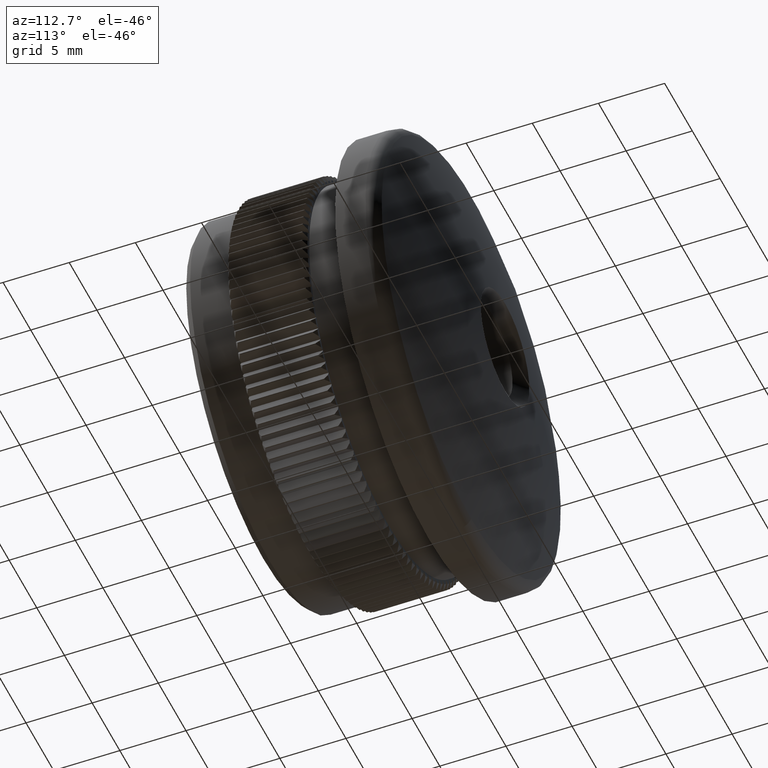
[diagram: clean part render]
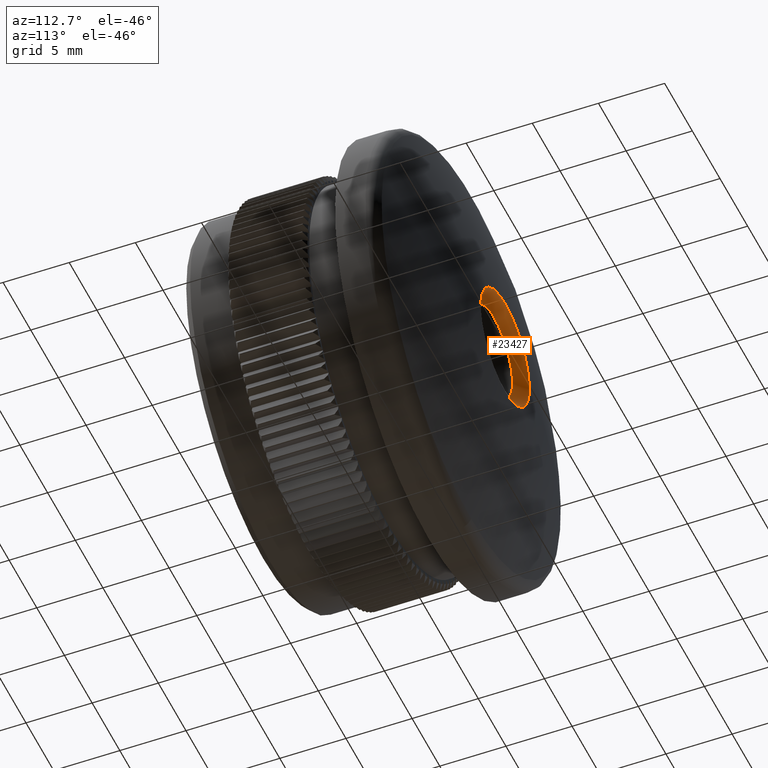
[diagram: same view with one face highlighted and labeled with its STEP entity id]
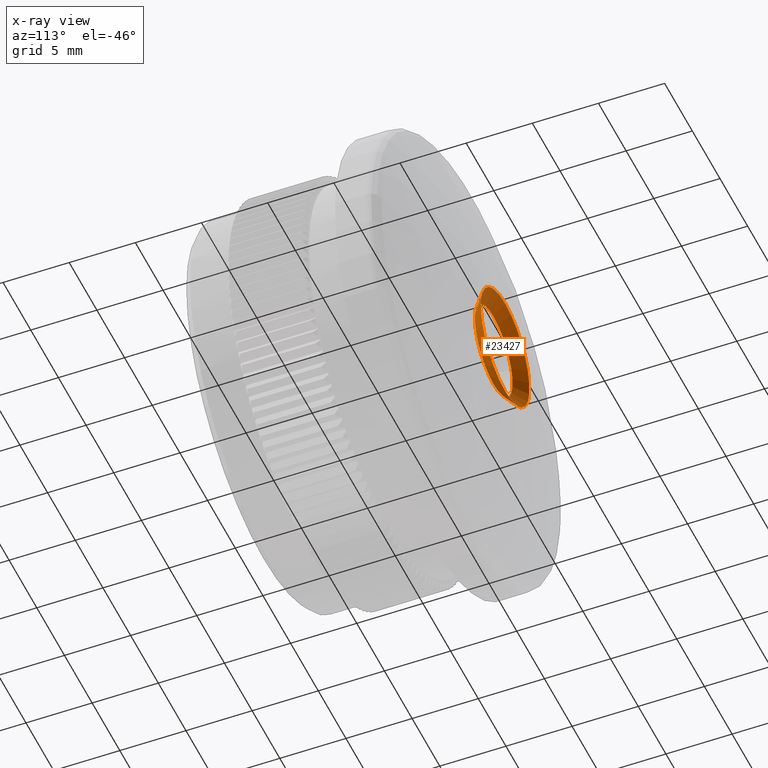
[diagram: x-ray of the same camera — body ghosted, the highlighted face saturated]
A machine part, auxiliary view. The second image highlights one B-rep face of the part: STEP entity #23427.
The next image is the same camera in x-ray: the body ghosted, the highlighted face saturated — about 0% of this face is hidden behind the body in this view.
In plain terms, the highlighted conical surface has half-angle 48.993 deg.
Its self-contained STEP definition (entity closure, byte-faithful):
#1000 = DIRECTION ( 'NONE',  ( 0.0000000000000000000, 1.000000000000000000, 0.0000000000000000000 ) ) ;
#1759 = FACE_OUTER_BOUND ( 'NONE', #16686, .T. ) ;
#2156 = AXIS2_PLACEMENT_3D ( 'NONE', #30752, #3579, #21432 ) ;
#3413 = CIRCLE ( 'NONE', #2156, 4.386859201859131500 ) ;
#3579 = DIRECTION ( 'NONE',  ( -0.0000000000000000000, -1.000000000000000000, -0.0000000000000000000 ) ) ;
#6445 = VERTEX_POINT ( 'NONE', #37274 ) ;
#8678 = EDGE_CURVE ( 'NONE', #6445, #6445, #3413, .T. ) ;
#10381 = CARTESIAN_POINT ( 'NONE',  ( 0.0000000000000000000, 17.44444466708847900, 3.399999999999997700 ) ) ;
#12427 = EDGE_LOOP ( 'NONE', ( #15613 ) ) ;
#15613 = ORIENTED_EDGE ( 'NONE', *, *, #23753, .F. ) ;
#16489 = AXIS2_PLACEMENT_3D ( 'NONE', #35772, #26840, #20804 ) ;
#16686 = EDGE_LOOP ( 'NONE', ( #25556 ) ) ;
#18257 = AXIS2_PLACEMENT_3D ( 'NONE', #22097, #1000, #34176 ) ;
#20804 = DIRECTION ( 'NONE',  ( 0.0000000000000000000, 0.0000000000000000000, 1.000000000000000000 ) ) ;
#21432 = DIRECTION ( 'NONE',  ( 0.0000000000000000000, 0.0000000000000000000, -1.000000000000000000 ) ) ;
#22097 = CARTESIAN_POINT ( 'NONE',  ( 0.0000000000000000000, 17.44444466708847900, 0.0000000000000000000 ) ) ;
#23427 = ADVANCED_FACE ( 'NONE', ( #1759, #35580 ), #25252, .F. ) ;
#23753 = EDGE_CURVE ( 'NONE', #35559, #35559, #31785, .T. ) ;
#25252 = CONICAL_SURFACE ( 'NONE', #16489, 3.399999999999997700, 0.8550975773874491800 ) ;
#25556 = ORIENTED_EDGE ( 'NONE', *, *, #8678, .F. ) ;
#26840 = DIRECTION ( 'NONE',  ( 0.0000000000000000000, 1.000000000000000000, 0.0000000000000000000 ) ) ;
#30752 = CARTESIAN_POINT ( 'NONE',  ( 0.0000000000000000000, 18.30250539536099600, 0.0000000000000000000 ) ) ;
#31785 = CIRCLE ( 'NONE', #18257, 3.399999999999997700 ) ;
#34176 = DIRECTION ( 'NONE',  ( 0.0000000000000000000, 0.0000000000000000000, 1.000000000000000000 ) ) ;
#35559 = VERTEX_POINT ( 'NONE', #10381 ) ;
#35580 = FACE_BOUND ( 'NONE', #12427, .T. ) ;
#35772 = CARTESIAN_POINT ( 'NONE',  ( 0.0000000000000000000, 17.44444466708847900, 0.0000000000000000000 ) ) ;
#37274 = CARTESIAN_POINT ( 'NONE',  ( 0.0000000000000000000, 18.30250539536099600, -4.386859201859131500 ) ) ;